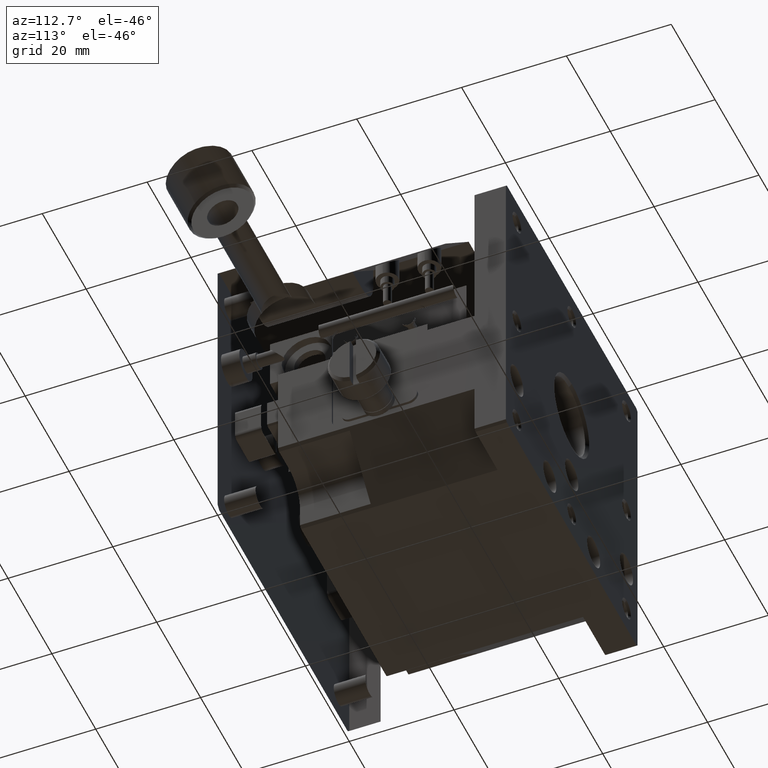
[diagram: clean part render]
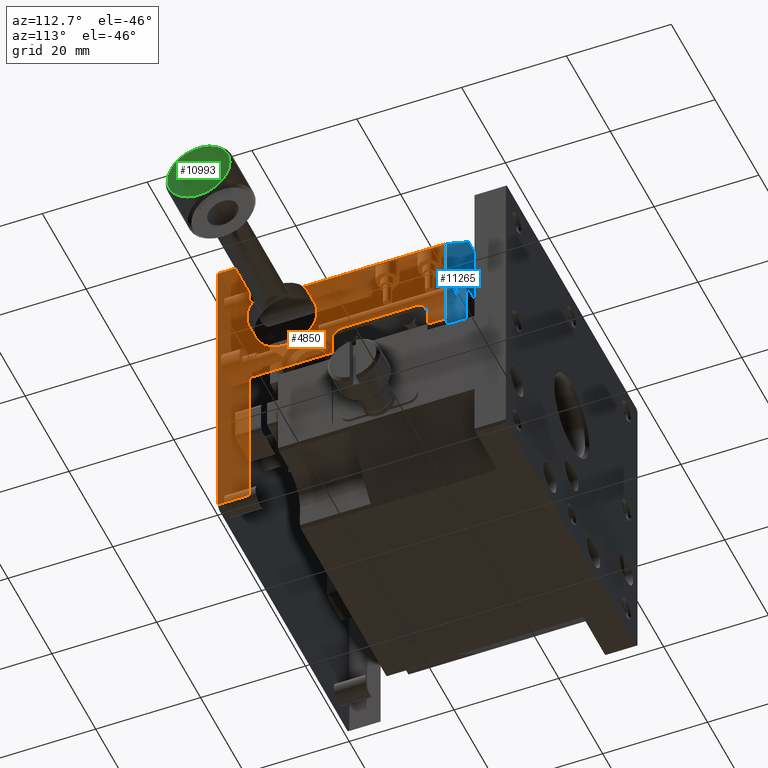
[diagram: same view with three faces highlighted in distinct colors, each labeled with its STEP entity id]
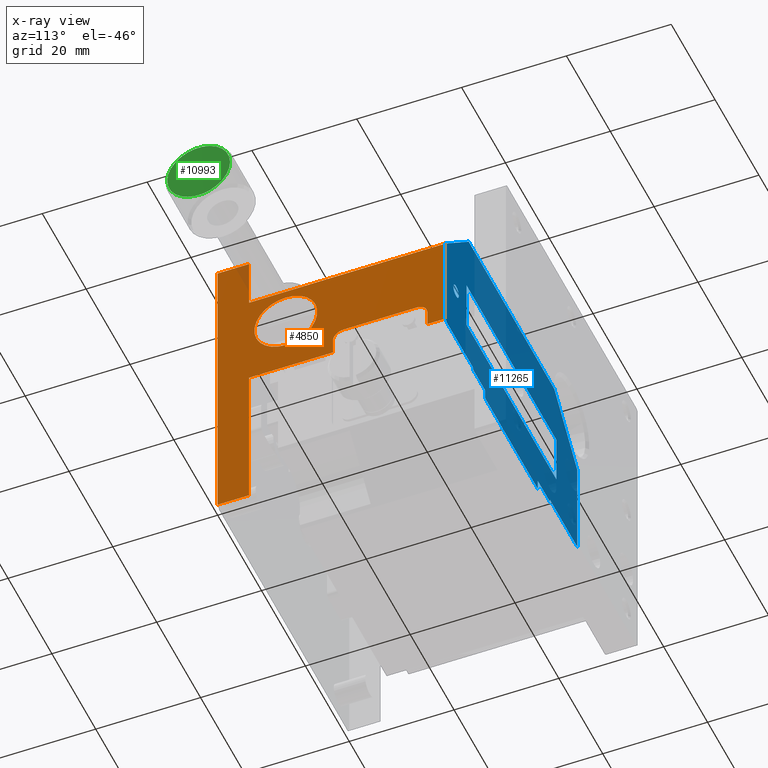
[diagram: x-ray of the same camera — body ghosted, the three highlighted faces saturated]
A machine part, auxiliary view with three faces highlighted in distinct colors.
The next image is the same camera in x-ray (body ghosted, the three faces saturated) — at least one of them is partly hidden behind the body in this view.
Their STEP definitions:

[orange] entity #4850 — the highlighted planar face has unit normal (-1, 0, 0).
#147 = LINE ( 'NONE', #10792, #8281 ) ;
#347 = DIRECTION ( 'NONE',  ( 0.000000000000000000, 0.000000000000000000, 1.000000000000000000 ) ) ;
#356 = CARTESIAN_POINT ( 'NONE',  ( 60.00000000000000000, 43.50000000000000711, -29.50000000000000355 ) ) ;
#368 = CARTESIAN_POINT ( 'NONE',  ( 60.00000000000000000, 40.00000000000000000, -26.50000000000000000 ) ) ;
#451 = VERTEX_POINT ( 'NONE', #9919 ) ;
#599 = CARTESIAN_POINT ( 'NONE',  ( 60.00000000000000000, 5.999999999999999112, -10.50000000000000178 ) ) ;
#660 = CARTESIAN_POINT ( 'NONE',  ( 60.00000000000000000, 6.000000000000000888, -0.7099999999999999645 ) ) ;
#670 = ORIENTED_EDGE ( 'NONE', *, *, #6749, .T. ) ;
#825 = AXIS2_PLACEMENT_3D ( 'NONE', #5008, #2950, #7415 ) ;
#831 = VECTOR ( 'NONE', #7247, 1000.000000000000000 ) ;
#1030 = ORIENTED_EDGE ( 'NONE', *, *, #1238, .T. ) ;
#1036 = LINE ( 'NONE', #5491, #7717 ) ;
#1048 = CARTESIAN_POINT ( 'NONE',  ( 60.00000000000000000, 22.00000000000000000, -29.50000000000000355 ) ) ;
#1097 = EDGE_CURVE ( 'NONE', #5803, #451, #3983, .T. ) ;
#1111 = DIRECTION ( 'NONE',  ( 1.000000000000000000, -0.000000000000000000, -0.000000000000000000 ) ) ;
#1238 = EDGE_CURVE ( 'NONE', #6596, #6939, #9040, .T. ) ;
#1326 = EDGE_CURVE ( 'NONE', #11462, #8062, #5849, .T. ) ;
#1433 = CARTESIAN_POINT ( 'NONE',  ( 60.00000000000000000, 24.00000000000000000, -24.49999999999999289 ) ) ;
#1443 = DIRECTION ( 'NONE',  ( -0.000000000000000000, -1.000000000000000000, 0.000000000000000000 ) ) ;
#1488 = ORIENTED_EDGE ( 'NONE', *, *, #7207, .T. ) ;
#1756 = EDGE_CURVE ( 'NONE', #451, #8151, #147, .T. ) ;
#1867 = CARTESIAN_POINT ( 'NONE',  ( 60.00000000000000000, 40.00000000000000000, -0.7099999999999999645 ) ) ;
#1901 = CARTESIAN_POINT ( 'NONE',  ( 60.00000000000000000, 43.50000000000000711, -0.7099999999999999645 ) ) ;
#2038 = CARTESIAN_POINT ( 'NONE',  ( 60.00000000000000000, 24.00000000000000000, -26.50000000000000000 ) ) ;
#2043 = EDGE_LOOP ( 'NONE', ( #670 ) ) ;
#2213 = DIRECTION ( 'NONE',  ( 0.000000000000000000, 1.000000000000000000, -0.000000000000000000 ) ) ;
#2261 = DIRECTION ( 'NONE',  ( -1.000000000000000000, 0.000000000000000000, 0.000000000000000000 ) ) ;
#2305 = VECTOR ( 'NONE', #4489, 1000.000000000000000 ) ;
#2333 = DIRECTION ( 'NONE',  ( 0.000000000000000000, 1.000000000000000000, -0.000000000000000000 ) ) ;
#2385 = CARTESIAN_POINT ( 'NONE',  ( 60.00000000000000000, 6.000000000000000000, -0.7099999999999999645 ) ) ;
#2770 = ORIENTED_EDGE ( 'NONE', *, *, #4803, .T. ) ;
#2950 = DIRECTION ( 'NONE',  ( 1.000000000000000000, -0.000000000000000000, -0.000000000000000000 ) ) ;
#3269 = FACE_BOUND ( 'NONE', #2043, .T. ) ;
#3486 = ORIENTED_EDGE ( 'NONE', *, *, #5905, .T. ) ;
#3534 = EDGE_LOOP ( 'NONE', ( #1030, #8177, #7552, #7845, #6705, #10900, #1488, #3486, #10475, #4190, #6787, #10568, #2770, #9767 ) ) ;
#3608 = LINE ( 'NONE', #3665, #831 ) ;
#3655 = DIRECTION ( 'NONE',  ( -0.000000000000000000, -0.000000000000000000, -1.000000000000000000 ) ) ;
#3665 = CARTESIAN_POINT ( 'NONE',  ( 60.00000000000000000, 6.000000000000000000, -0.7099999999999999645 ) ) ;
#3672 = VECTOR ( 'NONE', #7841, 1000.000000000000000 ) ;
#3839 = EDGE_CURVE ( 'NONE', #8062, #4476, #3608, .T. ) ;
#3849 = EDGE_CURVE ( 'NONE', #10308, #6596, #10859, .T. ) ;
#3983 = CIRCLE ( 'NONE', #10572, 2.000000000000011990 ) ;
#4033 = CARTESIAN_POINT ( 'NONE',  ( 60.00000000000000000, 6.000000000000000000, -0.7099999999999999645 ) ) ;
#4190 = ORIENTED_EDGE ( 'NONE', *, *, #10424, .F. ) ;
#4305 = VERTEX_POINT ( 'NONE', #9771 ) ;
#4476 = VERTEX_POINT ( 'NONE', #599 ) ;
#4489 = DIRECTION ( 'NONE',  ( -0.000000000000000000, -1.000000000000000000, 0.000000000000000000 ) ) ;
#4640 = EDGE_CURVE ( 'NONE', #6939, #7951, #5280, .T. ) ;
#4684 = DIRECTION ( 'NONE',  ( 0.000000000000000000, 0.000000000000000000, 1.000000000000000000 ) ) ;
#4803 = EDGE_CURVE ( 'NONE', #4476, #10308, #9331, .T. ) ;
#4850 = ADVANCED_FACE ( 'NONE', ( #6671, #3269 ), #6855, .T. ) ;
#4996 = VERTEX_POINT ( 'NONE', #7137 ) ;
#5008 = CARTESIAN_POINT ( 'NONE',  ( 60.00000000000000000, 38.00000000000000000, -26.50000000000000000 ) ) ;
#5195 = DIRECTION ( 'NONE',  ( -0.000000000000000000, -1.000000000000000000, 0.000000000000000000 ) ) ;
#5280 = LINE ( 'NONE', #1867, #9898 ) ;
#5314 = CARTESIAN_POINT ( 'NONE',  ( 60.00000000000000000, 6.000000000000000000, -0.7099999999999999645 ) ) ;
#5354 = CARTESIAN_POINT ( 'NONE',  ( 60.00000000000000000, 43.50000000000000711, -10.50000000000000000 ) ) ;
#5486 = DIRECTION ( 'NONE',  ( -0.000000000000000000, -0.000000000000000000, -1.000000000000000000 ) ) ;
#5491 = CARTESIAN_POINT ( 'NONE',  ( 60.00000000000000000, 6.000000000000000000, -24.50000000000000000 ) ) ;
#5563 = CIRCLE ( 'NONE', #8570, 5.999999999999998224 ) ;
#5577 = AXIS2_PLACEMENT_3D ( 'NONE', #2385, #2261, #347 ) ;
#5803 = VERTEX_POINT ( 'NONE', #1433 ) ;
#5849 = LINE ( 'NONE', #4033, #9784 ) ;
#5905 = EDGE_CURVE ( 'NONE', #4996, #8948, #7194, .T. ) ;
#6244 = LINE ( 'NONE', #10911, #2305 ) ;
#6249 = LINE ( 'NONE', #9020, #9017 ) ;
#6317 = CARTESIAN_POINT ( 'NONE',  ( 60.00000000000000000, 38.00000000000000000, -24.50000000000000000 ) ) ;
#6328 = DIRECTION ( 'NONE',  ( 0.000000000000000000, 0.000000000000000000, 1.000000000000000000 ) ) ;
#6596 = VERTEX_POINT ( 'NONE', #356 ) ;
#6671 = FACE_OUTER_BOUND ( 'NONE', #3534, .T. ) ;
#6702 = VECTOR ( 'NONE', #2333, 1000.000000000000000 ) ;
#6705 = ORIENTED_EDGE ( 'NONE', *, *, #1097, .T. ) ;
#6719 = CARTESIAN_POINT ( 'NONE',  ( 60.00000000000000000, 13.00000000000000178, -24.00000000000000000 ) ) ;
#6749 = EDGE_CURVE ( 'NONE', #10135, #10135, #5563, .T. ) ;
#6787 = ORIENTED_EDGE ( 'NONE', *, *, #1326, .T. ) ;
#6855 = PLANE ( 'NONE',  #5577 ) ;
#6917 = CARTESIAN_POINT ( 'NONE',  ( 60.00000000000000000, 0.000000000000000000, 0.000000000000000000 ) ) ;
#6939 = VERTEX_POINT ( 'NONE', #11167 ) ;
#7097 = CARTESIAN_POINT ( 'NONE',  ( 60.00000000000000000, 0.000000000000000000, -0.7100000000000000755 ) ) ;
#7137 = CARTESIAN_POINT ( 'NONE',  ( 60.00000000000000000, 5.999999999999999112, -29.50000000000000000 ) ) ;
#7194 = LINE ( 'NONE', #5314, #3672 ) ;
#7199 = VECTOR ( 'NONE', #5486, 1000.000000000000000 ) ;
#7207 = EDGE_CURVE ( 'NONE', #8151, #4996, #6249, .T. ) ;
#7247 = DIRECTION ( 'NONE',  ( -0.000000000000000000, -0.000000000000000000, -1.000000000000000000 ) ) ;
#7260 = DIRECTION ( 'NONE',  ( 1.000000000000000000, 0.000000000000000000, 0.000000000000000000 ) ) ;
#7415 = DIRECTION ( 'NONE',  ( 0.000000000000000000, 0.000000000000000000, 1.000000000000000000 ) ) ;
#7552 = ORIENTED_EDGE ( 'NONE', *, *, #10020, .T. ) ;
#7717 = VECTOR ( 'NONE', #8840, 1000.000000000000000 ) ;
#7841 = DIRECTION ( 'NONE',  ( -0.000000000000000000, -0.000000000000000000, -1.000000000000000000 ) ) ;
#7845 = ORIENTED_EDGE ( 'NONE', *, *, #8494, .T. ) ;
#7951 = VERTEX_POINT ( 'NONE', #368 ) ;
#8062 = VERTEX_POINT ( 'NONE', #660 ) ;
#8151 = VERTEX_POINT ( 'NONE', #1048 ) ;
#8177 = ORIENTED_EDGE ( 'NONE', *, *, #4640, .T. ) ;
#8281 = VECTOR ( 'NONE', #3655, 1000.000000000000000 ) ;
#8494 = EDGE_CURVE ( 'NONE', #10600, #5803, #1036, .T. ) ;
#8507 = CIRCLE ( 'NONE', #825, 1.999999999999991340 ) ;
#8570 = AXIS2_PLACEMENT_3D ( 'NONE', #10871, #7260, #10815 ) ;
#8676 = CARTESIAN_POINT ( 'NONE',  ( 60.00000000000000000, 6.000000000000000000, -29.50000000000000355 ) ) ;
#8829 = CARTESIAN_POINT ( 'NONE',  ( 60.00000000000000000, 6.000000000000000000, -59.28999999999999204 ) ) ;
#8840 = DIRECTION ( 'NONE',  ( -0.000000000000000000, -1.000000000000000000, 0.000000000000000000 ) ) ;
#8923 = DIRECTION ( 'NONE',  ( -0.000000000000000000, 0.000000000000000000, -1.000000000000000000 ) ) ;
#8948 = VERTEX_POINT ( 'NONE', #8829 ) ;
#9017 = VECTOR ( 'NONE', #5195, 1000.000000000000000 ) ;
#9020 = CARTESIAN_POINT ( 'NONE',  ( 60.00000000000000000, 6.000000000000000000, -29.50000000000000355 ) ) ;
#9040 = LINE ( 'NONE', #8676, #9259 ) ;
#9259 = VECTOR ( 'NONE', #1443, 1000.000000000000000 ) ;
#9331 = LINE ( 'NONE', #11280, #6702 ) ;
#9743 = LINE ( 'NONE', #6917, #10972 ) ;
#9767 = ORIENTED_EDGE ( 'NONE', *, *, #3849, .T. ) ;
#9771 = CARTESIAN_POINT ( 'NONE',  ( 60.00000000000000000, -1.951563910473907981E-15, -59.28999999999999204 ) ) ;
#9784 = VECTOR ( 'NONE', #2213, 1000.000000000000000 ) ;
#9886 = EDGE_CURVE ( 'NONE', #8948, #4305, #6244, .T. ) ;
#9898 = VECTOR ( 'NONE', #6328, 1000.000000000000000 ) ;
#9919 = CARTESIAN_POINT ( 'NONE',  ( 60.00000000000000000, 22.00000000000000000, -26.50000000000000000 ) ) ;
#10020 = EDGE_CURVE ( 'NONE', #7951, #10600, #8507, .T. ) ;
#10135 = VERTEX_POINT ( 'NONE', #6719 ) ;
#10308 = VERTEX_POINT ( 'NONE', #5354 ) ;
#10424 = EDGE_CURVE ( 'NONE', #11462, #4305, #9743, .T. ) ;
#10475 = ORIENTED_EDGE ( 'NONE', *, *, #9886, .T. ) ;
#10568 = ORIENTED_EDGE ( 'NONE', *, *, #3839, .T. ) ;
#10572 = AXIS2_PLACEMENT_3D ( 'NONE', #2038, #1111, #4684 ) ;
#10600 = VERTEX_POINT ( 'NONE', #6317 ) ;
#10792 = CARTESIAN_POINT ( 'NONE',  ( 60.00000000000000000, 22.00000000000000000, -0.7099999999999999645 ) ) ;
#10815 = DIRECTION ( 'NONE',  ( 0.000000000000000000, 0.000000000000000000, -1.000000000000000000 ) ) ;
#10859 = LINE ( 'NONE', #1901, #7199 ) ;
#10871 = CARTESIAN_POINT ( 'NONE',  ( 60.00000000000000000, 13.00000000000000178, -18.00000000000000355 ) ) ;
#10900 = ORIENTED_EDGE ( 'NONE', *, *, #1756, .T. ) ;
#10911 = CARTESIAN_POINT ( 'NONE',  ( 60.00000000000000000, 6.000000000000000000, -59.28999999999999915 ) ) ;
#10972 = VECTOR ( 'NONE', #8923, 1000.000000000000000 ) ;
#11167 = CARTESIAN_POINT ( 'NONE',  ( 60.00000000000000000, 40.00000000000000000, -29.50000000000000355 ) ) ;
#11280 = CARTESIAN_POINT ( 'NONE',  ( 60.00000000000000000, 6.000000000000000000, -10.50000000000000000 ) ) ;
#11462 = VERTEX_POINT ( 'NONE', #7097 ) ;

[blue] entity #11265 — the highlighted planar face has unit normal (0, 1, 0).
#54 = CARTESIAN_POINT ( 'NONE',  ( 18.00000000000000355, 43.50000000000000711, -30.80000000000000071 ) ) ;
#180 = VERTEX_POINT ( 'NONE', #5211 ) ;
#187 = CARTESIAN_POINT ( 'NONE',  ( 0.000000000000000000, 43.50000000000000711, 0.000000000000000000 ) ) ;
#212 = CARTESIAN_POINT ( 'NONE',  ( 0.000000000000000000, 43.50000000000000711, -30.00000000000000000 ) ) ;
#278 = EDGE_CURVE ( 'NONE', #2257, #10898, #8922, .T. ) ;
#311 = ORIENTED_EDGE ( 'NONE', *, *, #2566, .F. ) ;
#354 = ORIENTED_EDGE ( 'NONE', *, *, #3849, .F. ) ;
#356 = CARTESIAN_POINT ( 'NONE',  ( 60.00000000000000000, 43.50000000000000711, -29.50000000000000355 ) ) ;
#413 = DIRECTION ( 'NONE',  ( 0.000000000000000000, 0.000000000000000000, -1.000000000000000000 ) ) ;
#448 = LINE ( 'NONE', #5821, #4890 ) ;
#609 = VERTEX_POINT ( 'NONE', #7957 ) ;
#611 = VERTEX_POINT ( 'NONE', #7068 ) ;
#632 = VERTEX_POINT ( 'NONE', #3595 ) ;
#756 = VERTEX_POINT ( 'NONE', #5589 ) ;
#921 = ORIENTED_EDGE ( 'NONE', *, *, #278, .F. ) ;
#986 = VECTOR ( 'NONE', #5200, 1000.000000000000000 ) ;
#1065 = PLANE ( 'NONE',  #7110 ) ;
#1149 = DIRECTION ( 'NONE',  ( -1.000000000000000000, -0.000000000000000000, 0.000000000000000000 ) ) ;
#1210 = LINE ( 'NONE', #11092, #6733 ) ;
#1233 = EDGE_CURVE ( 'NONE', #8757, #2257, #6621, .T. ) ;
#1252 = ORIENTED_EDGE ( 'NONE', *, *, #4887, .F. ) ;
#1313 = CARTESIAN_POINT ( 'NONE',  ( 55.25000000000000000, 43.50000000000000711, -19.22950000000000514 ) ) ;
#1402 = VERTEX_POINT ( 'NONE', #2157 ) ;
#1428 = VECTOR ( 'NONE', #4165, 999.9999999999998863 ) ;
#1429 = VERTEX_POINT ( 'NONE', #1313 ) ;
#1502 = VERTEX_POINT ( 'NONE', #5017 ) ;
#1508 = VECTOR ( 'NONE', #10549, 1000.000000000000000 ) ;
#1516 = CARTESIAN_POINT ( 'NONE',  ( 49.50000000000000000, 43.50000000000000711, 0.000000000000000000 ) ) ;
#1534 = VECTOR ( 'NONE', #3322, 1000.000000000000000 ) ;
#1668 = EDGE_CURVE ( 'NONE', #10898, #5128, #5949, .T. ) ;
#1704 = ORIENTED_EDGE ( 'NONE', *, *, #11459, .F. ) ;
#1859 = CARTESIAN_POINT ( 'NONE',  ( 50.50000000000000000, 43.50000000000000711, 0.000000000000000000 ) ) ;
#1901 = CARTESIAN_POINT ( 'NONE',  ( 60.00000000000000000, 43.50000000000000711, -0.7099999999999999645 ) ) ;
#2157 = CARTESIAN_POINT ( 'NONE',  ( 49.50000000000000000, 43.50000000000000711, 6.505213034913042381E-16 ) ) ;
#2166 = LINE ( 'NONE', #7573, #5661 ) ;
#2210 = DIRECTION ( 'NONE',  ( -0.000000000000000000, -0.000000000000000000, -1.000000000000000000 ) ) ;
#2257 = VERTEX_POINT ( 'NONE', #2883 ) ;
#2288 = CARTESIAN_POINT ( 'NONE',  ( 18.00000000000000355, 43.50000000000000711, -32.50000000000000000 ) ) ;
#2331 = EDGE_CURVE ( 'NONE', #7330, #609, #2166, .T. ) ;
#2373 = CIRCLE ( 'NONE', #8013, 1.229500000000001370 ) ;
#2452 = DIRECTION ( 'NONE',  ( 1.000000000000000000, 0.000000000000000000, -0.000000000000000000 ) ) ;
#2467 = EDGE_CURVE ( 'NONE', #5128, #8757, #8802, .T. ) ;
#2505 = CARTESIAN_POINT ( 'NONE',  ( 12.50000000000000000, 43.50000000000000711, -30.50000000000000000 ) ) ;
#2566 = EDGE_CURVE ( 'NONE', #5394, #7330, #4156, .T. ) ;
#2567 = LINE ( 'NONE', #6140, #7000 ) ;
#2633 = ORIENTED_EDGE ( 'NONE', *, *, #5847, .F. ) ;
#2683 = VECTOR ( 'NONE', #5445, 1000.000000000000000 ) ;
#2691 = ORIENTED_EDGE ( 'NONE', *, *, #2981, .F. ) ;
#2883 = CARTESIAN_POINT ( 'NONE',  ( 50.50000000000000000, 43.50000000000000711, -12.00000000000000000 ) ) ;
#2885 = DIRECTION ( 'NONE',  ( 0.000000000000000000, -0.000000000000000000, 1.000000000000000000 ) ) ;
#2962 = LINE ( 'NONE', #54, #8309 ) ;
#2965 = ORIENTED_EDGE ( 'NONE', *, *, #6247, .F. ) ;
#2978 = CARTESIAN_POINT ( 'NONE',  ( 55.25000000000000000, 43.50000000000000711, -18.00000000000000355 ) ) ;
#2981 = EDGE_CURVE ( 'NONE', #756, #1502, #3147, .T. ) ;
#3023 = VERTEX_POINT ( 'NONE', #6240 ) ;
#3124 = DIRECTION ( 'NONE',  ( -1.000000000000000000, -0.000000000000000000, 0.000000000000000000 ) ) ;
#3147 = LINE ( 'NONE', #8012, #11150 ) ;
#3322 = DIRECTION ( 'NONE',  ( -0.000000000000000000, -0.000000000000000000, 1.000000000000000000 ) ) ;
#3357 = ORIENTED_EDGE ( 'NONE', *, *, #5500, .F. ) ;
#3566 = CARTESIAN_POINT ( 'NONE',  ( 0.000000000000000000, 43.50000000000000711, -32.50000000000000000 ) ) ;
#3595 = CARTESIAN_POINT ( 'NONE',  ( 18.00000000000000355, 43.50000000000000711, -30.50000000000000000 ) ) ;
#3822 = EDGE_CURVE ( 'NONE', #609, #8951, #7134, .T. ) ;
#3849 = EDGE_CURVE ( 'NONE', #10308, #6596, #10859, .T. ) ;
#3982 = LINE ( 'NONE', #8333, #7070 ) ;
#3996 = VECTOR ( 'NONE', #8079, 1000.000000000000114 ) ;
#3997 = EDGE_LOOP ( 'NONE', ( #8074, #4874, #3357, #2965, #8004, #1704, #9487, #1252, #6016, #2691, #7121, #10047, #2633, #354, #10056, #7271, #10897, #8895, #311 ) ) ;
#4156 = LINE ( 'NONE', #5214, #4349 ) ;
#4165 = DIRECTION ( 'NONE',  ( 0.7071067811865473507, 0.000000000000000000, -0.7071067811865477948 ) ) ;
#4323 = ORIENTED_EDGE ( 'NONE', *, *, #2467, .F. ) ;
#4349 = VECTOR ( 'NONE', #6868, 1000.000000000000000 ) ;
#4454 = CARTESIAN_POINT ( 'NONE',  ( 0.000000000000000000, 43.50000000000000711, -12.00000000000000000 ) ) ;
#4460 = DIRECTION ( 'NONE',  ( -1.000000000000000000, -0.000000000000000000, 0.000000000000000000 ) ) ;
#4477 = EDGE_CURVE ( 'NONE', #611, #10995, #6822, .T. ) ;
#4492 = CARTESIAN_POINT ( 'NONE',  ( 60.00000000000000000, 43.50000000000000711, -29.50000000000000355 ) ) ;
#4495 = CARTESIAN_POINT ( 'NONE',  ( 0.000000000000000000, 43.50000000000000711, -10.50000000000000000 ) ) ;
#4811 = VECTOR ( 'NONE', #7689, 1000.000000000000000 ) ;
#4838 = VECTOR ( 'NONE', #5922, 1000.000000000000000 ) ;
#4864 = DIRECTION ( 'NONE',  ( -1.000000000000000000, -0.000000000000000000, 0.000000000000000000 ) ) ;
#4868 = CARTESIAN_POINT ( 'NONE',  ( 18.00000000000000355, 43.50000000000000711, -32.50000000000000000 ) ) ;
#4874 = ORIENTED_EDGE ( 'NONE', *, *, #11028, .F. ) ;
#4887 = EDGE_CURVE ( 'NONE', #3023, #611, #5844, .T. ) ;
#4890 = VECTOR ( 'NONE', #3124, 1000.000000000000000 ) ;
#4920 = VECTOR ( 'NONE', #5386, 1000.000000000000000 ) ;
#4941 = ORIENTED_EDGE ( 'NONE', *, *, #1668, .F. ) ;
#4987 = LINE ( 'NONE', #11181, #4838 ) ;
#5017 = CARTESIAN_POINT ( 'NONE',  ( 42.29999999999999716, 43.50000000000000711, -30.50000000000000000 ) ) ;
#5128 = VERTEX_POINT ( 'NONE', #5599 ) ;
#5200 = DIRECTION ( 'NONE',  ( 1.000000000000000000, -0.000000000000000000, 0.000000000000000000 ) ) ;
#5211 = CARTESIAN_POINT ( 'NONE',  ( 18.00000000000000355, 43.50000000000000711, -30.80000000000000071 ) ) ;
#5214 = CARTESIAN_POINT ( 'NONE',  ( 0.000000000000000000, 43.50000000000000711, -30.00000000000000000 ) ) ;
#5354 = CARTESIAN_POINT ( 'NONE',  ( 60.00000000000000000, 43.50000000000000711, -10.50000000000000000 ) ) ;
#5386 = DIRECTION ( 'NONE',  ( -1.000000000000000000, -0.000000000000000000, 0.000000000000000000 ) ) ;
#5394 = VERTEX_POINT ( 'NONE', #8273 ) ;
#5445 = DIRECTION ( 'NONE',  ( 0.000000000000000000, -0.000000000000000000, 1.000000000000000000 ) ) ;
#5486 = DIRECTION ( 'NONE',  ( -0.000000000000000000, -0.000000000000000000, -1.000000000000000000 ) ) ;
#5493 = CARTESIAN_POINT ( 'NONE',  ( 9.500000000000000000, 43.50000000000000711, -12.00000000000000000 ) ) ;
#5500 = EDGE_CURVE ( 'NONE', #632, #9630, #4987, .T. ) ;
#5521 = FACE_BOUND ( 'NONE', #9654, .T. ) ;
#5589 = CARTESIAN_POINT ( 'NONE',  ( 47.50000000000000000, 43.50000000000000711, -30.50000000000000000 ) ) ;
#5599 = CARTESIAN_POINT ( 'NONE',  ( 9.500000000000001776, 43.50000000000000711, -22.00000000000000000 ) ) ;
#5661 = VECTOR ( 'NONE', #8451, 1000.000000000000000 ) ;
#5821 = CARTESIAN_POINT ( 'NONE',  ( 0.000000000000000000, 43.50000000000000711, -30.00000000000000000 ) ) ;
#5844 = LINE ( 'NONE', #10271, #7453 ) ;
#5847 = EDGE_CURVE ( 'NONE', #6596, #11579, #8962, .T. ) ;
#5922 = DIRECTION ( 'NONE',  ( -1.000000000000000000, -0.000000000000000000, 0.000000000000000000 ) ) ;
#5949 = LINE ( 'NONE', #9545, #1508 ) ;
#6016 = ORIENTED_EDGE ( 'NONE', *, *, #6559, .F. ) ;
#6140 = CARTESIAN_POINT ( 'NONE',  ( 47.50000000000000000, 43.50000000000000711, -30.00000000000000000 ) ) ;
#6240 = CARTESIAN_POINT ( 'NONE',  ( 42.00000000000000000, 43.50000000000000711, -30.50000000000000000 ) ) ;
#6247 = EDGE_CURVE ( 'NONE', #180, #632, #11474, .T. ) ;
#6269 = EDGE_CURVE ( 'NONE', #1402, #10308, #9696, .T. ) ;
#6393 = FACE_OUTER_BOUND ( 'NONE', #3997, .T. ) ;
#6446 = ORIENTED_EDGE ( 'NONE', *, *, #6593, .F. ) ;
#6543 = DIRECTION ( 'NONE',  ( 0.000000000000000000, 0.000000000000000000, 1.000000000000000000 ) ) ;
#6559 = EDGE_CURVE ( 'NONE', #1502, #3023, #3982, .T. ) ;
#6561 = DIRECTION ( 'NONE',  ( 0.000000000000000000, -1.000000000000000000, 0.000000000000000000 ) ) ;
#6593 = EDGE_CURVE ( 'NONE', #1429, #1429, #2373, .T. ) ;
#6596 = VERTEX_POINT ( 'NONE', #356 ) ;
#6621 = LINE ( 'NONE', #1859, #2683 ) ;
#6733 = VECTOR ( 'NONE', #1149, 1000.000000000000000 ) ;
#6810 = CARTESIAN_POINT ( 'NONE',  ( 0.000000000000000000, 43.50000000000000711, -22.00000000000000000 ) ) ;
#6822 = LINE ( 'NONE', #8705, #8578 ) ;
#6844 = EDGE_CURVE ( 'NONE', #10223, #756, #2567, .T. ) ;
#6868 = DIRECTION ( 'NONE',  ( -1.000000000000000000, -0.000000000000000000, 0.000000000000000000 ) ) ;
#6929 = DIRECTION ( 'NONE',  ( 0.000000000000000000, 0.000000000000000000, -1.000000000000000000 ) ) ;
#6991 = EDGE_LOOP ( 'NONE', ( #6446 ) ) ;
#7000 = VECTOR ( 'NONE', #7147, 1000.000000000000000 ) ;
#7056 = CARTESIAN_POINT ( 'NONE',  ( 47.50000000000000000, 43.50000000000000711, -30.00000000000000000 ) ) ;
#7068 = CARTESIAN_POINT ( 'NONE',  ( 42.00000000000000000, 43.50000000000000711, -30.80000000000000071 ) ) ;
#7070 = VECTOR ( 'NONE', #4864, 1000.000000000000000 ) ;
#7110 = AXIS2_PLACEMENT_3D ( 'NONE', #187, #10952, #2885 ) ;
#7117 = VECTOR ( 'NONE', #4460, 1000.000000000000000 ) ;
#7121 = ORIENTED_EDGE ( 'NONE', *, *, #6844, .F. ) ;
#7134 = LINE ( 'NONE', #4495, #3996 ) ;
#7147 = DIRECTION ( 'NONE',  ( -0.000000000000000000, -0.000000000000000000, -1.000000000000000000 ) ) ;
#7199 = VECTOR ( 'NONE', #5486, 1000.000000000000000 ) ;
#7234 = VECTOR ( 'NONE', #8726, 1000.000000000000000 ) ;
#7271 = ORIENTED_EDGE ( 'NONE', *, *, #10775, .F. ) ;
#7330 = VERTEX_POINT ( 'NONE', #212 ) ;
#7453 = VECTOR ( 'NONE', #2210, 1000.000000000000000 ) ;
#7530 = VECTOR ( 'NONE', #2452, 1000.000000000000000 ) ;
#7573 = CARTESIAN_POINT ( 'NONE',  ( 0.000000000000000000, 43.50000000000000711, -59.28999999999999915 ) ) ;
#7606 = EDGE_CURVE ( 'NONE', #11579, #10223, #448, .T. ) ;
#7689 = DIRECTION ( 'NONE',  ( -0.000000000000000000, -0.000000000000000000, 1.000000000000000000 ) ) ;
#7957 = CARTESIAN_POINT ( 'NONE',  ( 8.470329472543005363E-16, 43.50000000000000711, -10.49999999999999822 ) ) ;
#7968 = CARTESIAN_POINT ( 'NONE',  ( 0.7099999999999999645, 43.50000000000000711, 0.000000000000000000 ) ) ;
#8004 = ORIENTED_EDGE ( 'NONE', *, *, #9538, .F. ) ;
#8012 = CARTESIAN_POINT ( 'NONE',  ( 0.000000000000000000, 43.50000000000000711, -30.50000000000000000 ) ) ;
#8013 = AXIS2_PLACEMENT_3D ( 'NONE', #2978, #6561, #413 ) ;
#8042 = LINE ( 'NONE', #3566, #7117 ) ;
#8066 = CARTESIAN_POINT ( 'NONE',  ( 10.50000000000000000, 43.50000000000000711, 8.673617379884043361E-16 ) ) ;
#8074 = ORIENTED_EDGE ( 'NONE', *, *, #10741, .F. ) ;
#8079 = DIRECTION ( 'NONE',  ( 0.7071067811865474617, -0.000000000000000000, 0.7071067811865474617 ) ) ;
#8273 = CARTESIAN_POINT ( 'NONE',  ( 12.50000000000000000, 43.50000000000000711, -30.00000000000000000 ) ) ;
#8309 = VECTOR ( 'NONE', #6543, 1000.000000000000000 ) ;
#8333 = CARTESIAN_POINT ( 'NONE',  ( 47.50000000000000000, 43.50000000000000711, -30.50000000000000000 ) ) ;
#8364 = CARTESIAN_POINT ( 'NONE',  ( 12.50000000000000000, 43.50000000000000711, -30.50000000000000000 ) ) ;
#8451 = DIRECTION ( 'NONE',  ( -0.000000000000000000, -0.000000000000000000, 1.000000000000000000 ) ) ;
#8578 = VECTOR ( 'NONE', #6929, 1000.000000000000000 ) ;
#8695 = CARTESIAN_POINT ( 'NONE',  ( 59.50000000000000711, 43.50000000000000711, -30.00000000000000000 ) ) ;
#8699 = VERTEX_POINT ( 'NONE', #8364 ) ;
#8705 = CARTESIAN_POINT ( 'NONE',  ( 42.00000000000000000, 43.50000000000000711, -36.20000000000000284 ) ) ;
#8726 = DIRECTION ( 'NONE',  ( -0.7071067811865450192, 0.000000000000000000, -0.7071067811865500152 ) ) ;
#8757 = VERTEX_POINT ( 'NONE', #11324 ) ;
#8802 = LINE ( 'NONE', #6810, #7530 ) ;
#8844 = LINE ( 'NONE', #2505, #1534 ) ;
#8895 = ORIENTED_EDGE ( 'NONE', *, *, #2331, .F. ) ;
#8922 = LINE ( 'NONE', #4454, #4920 ) ;
#8951 = VERTEX_POINT ( 'NONE', #8066 ) ;
#8962 = LINE ( 'NONE', #4492, #7234 ) ;
#9117 = FACE_BOUND ( 'NONE', #6991, .T. ) ;
#9487 = ORIENTED_EDGE ( 'NONE', *, *, #4477, .F. ) ;
#9538 = EDGE_CURVE ( 'NONE', #11288, #180, #2962, .T. ) ;
#9545 = CARTESIAN_POINT ( 'NONE',  ( 9.500000000000000000, 43.50000000000000711, 0.000000000000000000 ) ) ;
#9630 = VERTEX_POINT ( 'NONE', #11271 ) ;
#9654 = EDGE_LOOP ( 'NONE', ( #11099, #4323, #4941, #921 ) ) ;
#9696 = LINE ( 'NONE', #1516, #1428 ) ;
#9732 = LINE ( 'NONE', #7968, #986 ) ;
#10047 = ORIENTED_EDGE ( 'NONE', *, *, #7606, .F. ) ;
#10056 = ORIENTED_EDGE ( 'NONE', *, *, #6269, .F. ) ;
#10079 = CARTESIAN_POINT ( 'NONE',  ( 42.00000000000000000, 43.50000000000000711, -32.50000000000000000 ) ) ;
#10223 = VERTEX_POINT ( 'NONE', #7056 ) ;
#10271 = CARTESIAN_POINT ( 'NONE',  ( 42.00000000000000000, 43.50000000000000711, -30.50000000000000000 ) ) ;
#10308 = VERTEX_POINT ( 'NONE', #5354 ) ;
#10549 = DIRECTION ( 'NONE',  ( -0.000000000000000000, 0.000000000000000000, -1.000000000000000000 ) ) ;
#10741 = EDGE_CURVE ( 'NONE', #8699, #5394, #8844, .T. ) ;
#10775 = EDGE_CURVE ( 'NONE', #8951, #1402, #9732, .T. ) ;
#10859 = LINE ( 'NONE', #1901, #7199 ) ;
#10897 = ORIENTED_EDGE ( 'NONE', *, *, #3822, .F. ) ;
#10898 = VERTEX_POINT ( 'NONE', #5493 ) ;
#10952 = DIRECTION ( 'NONE',  ( 0.000000000000000000, 1.000000000000000000, 0.000000000000000000 ) ) ;
#10995 = VERTEX_POINT ( 'NONE', #10079 ) ;
#11028 = EDGE_CURVE ( 'NONE', #9630, #8699, #1210, .T. ) ;
#11092 = CARTESIAN_POINT ( 'NONE',  ( 0.000000000000000000, 43.50000000000000711, -30.50000000000000000 ) ) ;
#11099 = ORIENTED_EDGE ( 'NONE', *, *, #1233, .F. ) ;
#11150 = VECTOR ( 'NONE', #11618, 1000.000000000000000 ) ;
#11181 = CARTESIAN_POINT ( 'NONE',  ( 18.00000000000000355, 43.50000000000000711, -30.50000000000000000 ) ) ;
#11265 = ADVANCED_FACE ( 'NONE', ( #6393, #5521, #9117 ), #1065, .F. ) ;
#11271 = CARTESIAN_POINT ( 'NONE',  ( 17.69999999999999929, 43.50000000000000711, -30.50000000000000000 ) ) ;
#11288 = VERTEX_POINT ( 'NONE', #4868 ) ;
#11324 = CARTESIAN_POINT ( 'NONE',  ( 50.50000000000000000, 43.50000000000000711, -22.00000000000000000 ) ) ;
#11459 = EDGE_CURVE ( 'NONE', #10995, #11288, #8042, .T. ) ;
#11474 = LINE ( 'NONE', #2288, #4811 ) ;
#11579 = VERTEX_POINT ( 'NONE', #8695 ) ;
#11618 = DIRECTION ( 'NONE',  ( -1.000000000000000000, -0.000000000000000000, 0.000000000000000000 ) ) ;

[green] entity #10993 — the highlighted planar face has unit normal (-1, 0, 0).
#216 = DIRECTION ( 'NONE',  ( -1.000000000000000000, 0.000000000000000000, 0.000000000000000000 ) ) ;
#654 = CARTESIAN_POINT ( 'NONE',  ( 99.74999999997180566, 13.00000000000000178, -18.00000000000000355 ) ) ;
#2799 = AXIS2_PLACEMENT_3D ( 'NONE', #8253, #216, #3783 ) ;
#3179 = CIRCLE ( 'NONE', #10899, 5.999999999999547029 ) ;
#3783 = DIRECTION ( 'NONE',  ( 0.000000000000000000, 0.000000000000000000, 1.000000000000000000 ) ) ;
#4672 = PLANE ( 'NONE',  #2799 ) ;
#4982 = EDGE_LOOP ( 'NONE', ( #8477 ) ) ;
#6587 = VERTEX_POINT ( 'NONE', #10121 ) ;
#7981 = DIRECTION ( 'NONE',  ( -1.000000000000000000, -1.067522139064667000E-15, -0.000000000000000000 ) ) ;
#8253 = CARTESIAN_POINT ( 'NONE',  ( 99.75000000000000000, 19.00000000000000000, -18.00000000000000355 ) ) ;
#8477 = ORIENTED_EDGE ( 'NONE', *, *, #11504, .T. ) ;
#9145 = FACE_OUTER_BOUND ( 'NONE', #4982, .T. ) ;
#10121 = CARTESIAN_POINT ( 'NONE',  ( 99.74999999997180566, 7.000000000000453859, -18.00000000000000355 ) ) ;
#10698 = DIRECTION ( 'NONE',  ( 0.000000000000000000, -1.000000000000000000, 0.000000000000000000 ) ) ;
#10899 = AXIS2_PLACEMENT_3D ( 'NONE', #654, #7981, #10698 ) ;
#10993 = ADVANCED_FACE ( 'NONE', ( #9145 ), #4672, .T. ) ;
#11504 = EDGE_CURVE ( 'NONE', #6587, #6587, #3179, .T. ) ;